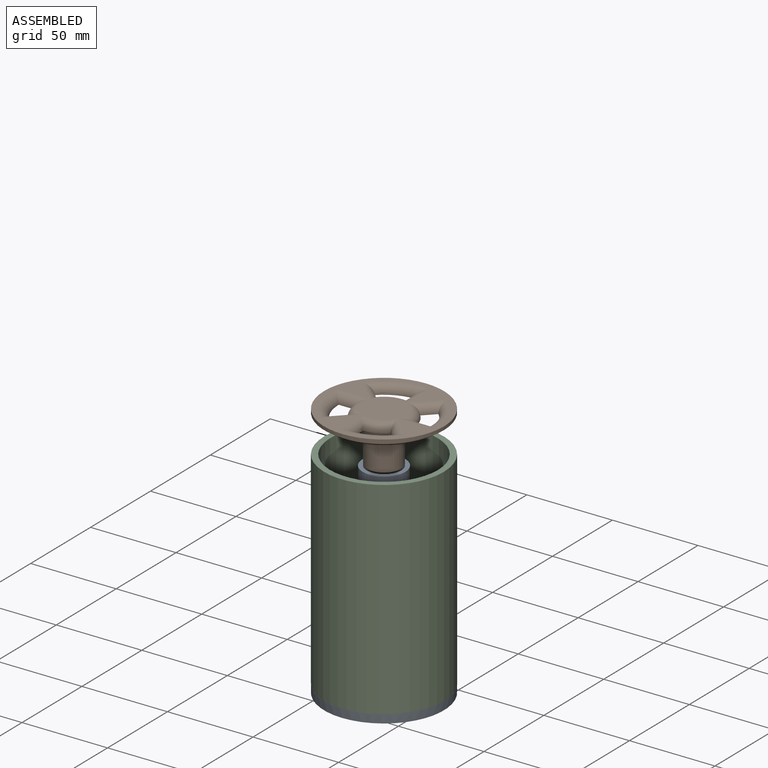
[diagram: assembled view]
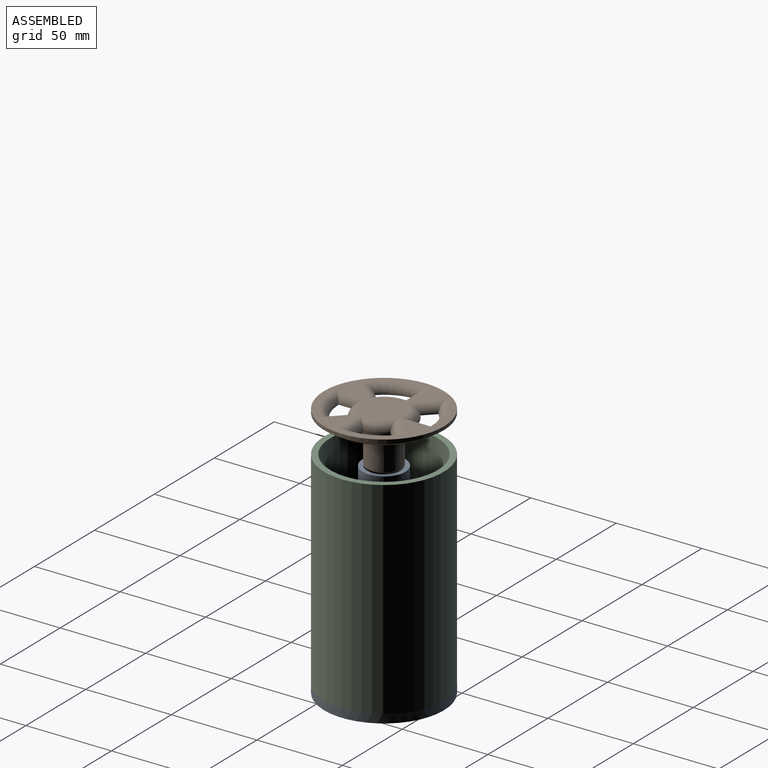
[diagram: assembled view, second angle]
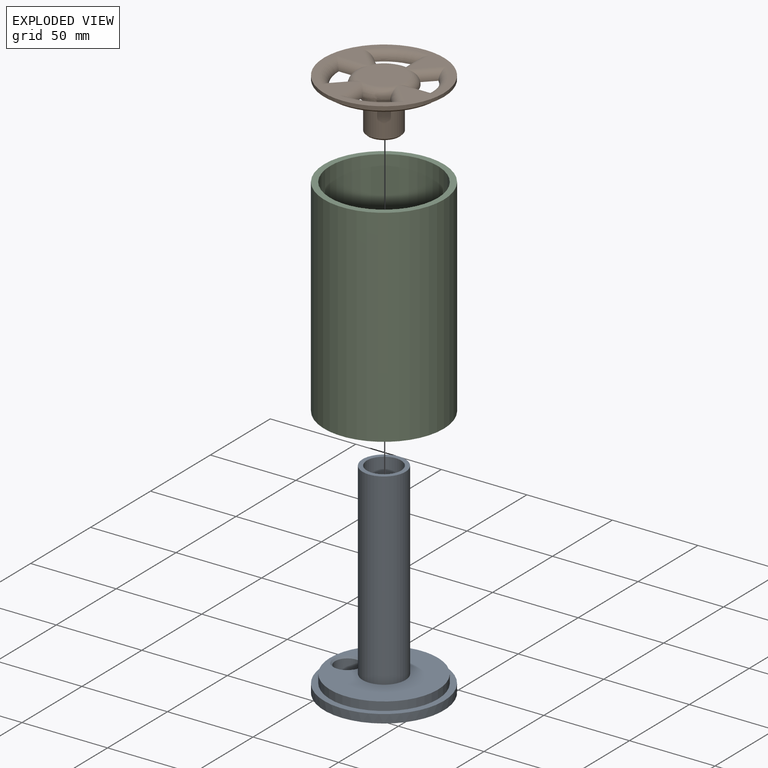
[diagram: exploded view]
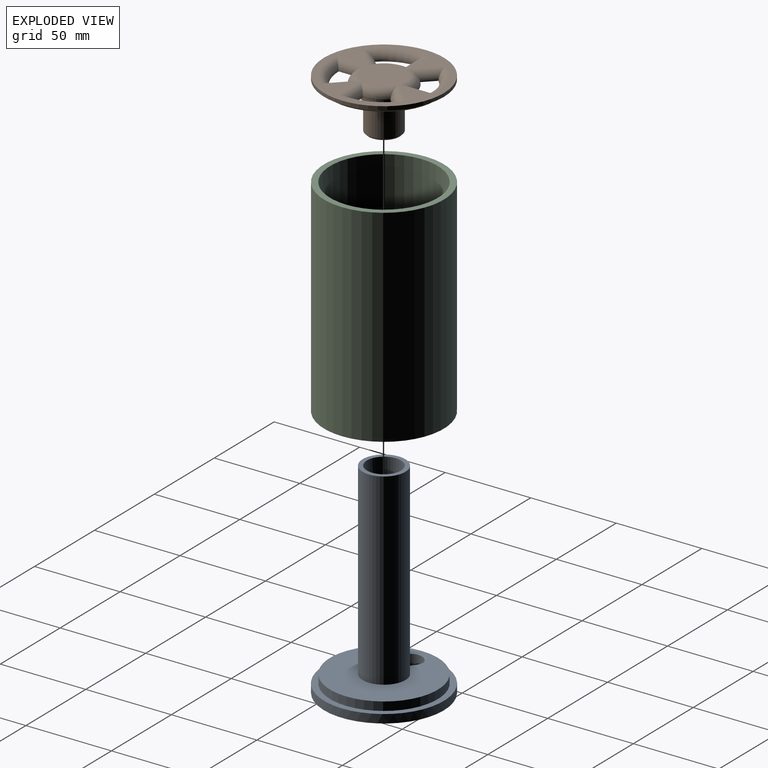
[diagram: exploded view, second angle]
ASSEMBLY  parts=3 mates=2
PART A: 13 faces, bbox 71.3x71.3x122.5 mm
  f0: cylinder r=35mm len=70mm, axis (0,0,-1), area 1066.7mm2, adj f1,f2,f10
  f1: plane 70x69.88mm, normal (0,0,-1), area 3663.4mm2, adj f0,f7,f8,f10
  f2: plane 71.28x71.23mm, normal (0,0,1), area 730.8mm2, adj f0,f3,f10
  f3: cylinder r=31.5mm len=63mm, axis (0,0,-1), area 989.6mm2, adj f2,f4
  f4: plane 63x63mm, normal (0,0,1), area 2412.7mm2, adj f3,f6,f9
  f5: plane 25x25mm, normal (0,0,1), area 176.7mm2, adj f6,f11
  f6: cylinder r=12.5mm len=110mm, axis (0,0,-1), area 8639.4mm2, adj f4,f5
  f7: cylinder r=2.55mm len=5.49mm, axis (-1,0,0), area 70.2mm2, adj f1,f8,f10
  f8: cylinder r=7.25mm len=14.49mm, axis (0,0,1), area 390.1mm2, adj f1,f7,f9
  f9: cone r=7.25mm half-angle=45deg, axis (0,0,1), area 68.8mm2, adj f4,f8
  f10: bspline ~7.32x6.81mm, area 22.6mm2, adj f0,f1,f2,f7
  f11: cylinder r=10mm len=30mm, axis (0,0,1), area 1885mm2, adj f5,f12
  f12: plane 20x20mm, normal (0,0,1), area 314.2mm2, adj f11
PART B: 32 faces, bbox 75.9x75.9x30 mm
  f0: plane 25x25mm, normal (0,0,-1), area 490.9mm2, adj f15,f16,f19,f20,f23,f24,f25,f28
  f1: cylinder r=35mm len=70mm, axis (0,0,-1), area 439.8mm2, adj f2,f3
  f2: plane 70x70mm, normal (0,0,1), area 731.2mm2, adj f1,f4
  f3: plane 70x70mm, normal (0,0,-1), area 1276.6mm2, adj f1,f12,f13,f14,f17,f18,f21,f22
  f4: cylinder r=31.5mm len=63mm, axis (0,0,-1), area 395.8mm2, adj f2,f11
  f5: plane 61x61mm, normal (0,0,1), area 1809.6mm2, adj f6,f11,f12,f13,f14,f15,f17,f18
  f6: cylinder r=12.5mm len=25mm, axis (0,0,-1), area 392.7mm2, adj f5,f7
  f7: plane 25x25mm, normal (0,0,1), area 176.7mm2, adj f6,f8
  f8: cylinder r=10mm len=20mm, axis (0,0,-1), area 1193.8mm2, adj f7,f10
  f9: plane 18x18mm, normal (0,0,1), area 254.5mm2, adj f10
  f10: cone r=9mm half-angle=45deg, axis (0,0,-1), area 84.4mm2, adj f8,f9
  f11: cone r=30.5mm half-angle=45deg, axis (0,0,-1), area 275.5mm2, adj f4,f5
  f12: torus R=31.5mm, axis (0,0,1), area 203.3mm2, adj f3,f5,f13,f14
  f13: cylinder r=5mm len=19.41mm, axis (0,1,0), area 100.1mm2, adj f3,f5,f12,f15,f17
  f14: cylinder r=5mm len=17.26mm, axis (-0.71,-0.71,0), area 100.1mm2, adj f3,f5,f12,f15,f18
  f15: torus R=12.5mm, axis (0,0,1), area 125.5mm2, adj f0,f5,f13,f14,f16,f19
  f16: torus R=12.5mm, axis (0,0,1), area 0mm2, adj f0,f15,f20
  f17: cylinder r=5mm len=17.26mm, axis (0.71,-0.71,0), area 100.1mm2, adj f3,f5,f13,f20,f21
  f18: cylinder r=5mm len=19.41mm, axis (1,0,0), area 100.1mm2, adj f3,f5,f14,f22,f23
  f19: torus R=12.5mm, axis (0,0,1), area 0mm2, adj f0,f15,f23
  f20: torus R=12.5mm, axis (0,0,1), area 125.5mm2, adj f0,f5,f16,f17,f25,f26
  f21: torus R=31.5mm, axis (0,0,1), area 203.3mm2, adj f3,f5,f17,f26
  f22: torus R=31.5mm, axis (0,0,1), area 203.3mm2, adj f3,f5,f18,f27
  f23: torus R=12.5mm, axis (0,0,1), area 125.5mm2, adj f0,f5,f18,f19,f24,f27
  f24: torus R=12.5mm, axis (0,0,1), area 0mm2, adj f0,f23,f28
  f25: torus R=12.5mm, axis (0,0,1), area 0mm2, adj f0,f20,f28
  f26: cylinder r=5mm len=19.41mm, axis (-1,0,0), area 100.1mm2, adj f3,f5,f20,f21,f29
  f27: cylinder r=5mm len=17.26mm, axis (-0.71,0.71,0), area 100.1mm2, adj f3,f5,f22,f23,f30
  f28: torus R=12.5mm, axis (0,0,1), area 125.5mm2, adj f0,f5,f24,f25,f29,f30
  f29: cylinder r=5mm len=17.26mm, axis (0.71,0.71,0), area 100.1mm2, adj f3,f5,f26,f28,f31
  f30: cylinder r=5mm len=19.41mm, axis (0,-1,0), area 100.1mm2, adj f3,f5,f27,f28,f31
  f31: torus R=31.5mm, axis (0,0,1), area 203.3mm2, adj f3,f5,f29,f30
PART C: 4 faces, bbox 70x70x121 mm
  f0: cylinder r=31.5mm len=121mm, axis (0,0,-1), area 23948.4mm2, adj f2,f3
  f1: cylinder r=35mm len=121mm, axis (0,0,-1), area 26609.3mm2, adj f2,f3
  f2: plane 70x70mm, normal (0,0,1), area 731.2mm2, adj f0,f1
  f3: plane 70x70mm, normal (0,0,-1), area 731.2mm2, adj f0,f1
PLACE A t=(-124.13,22.42,-32.93)mm
PLACE B rot(axis=(1,0,0),180deg) t=(-124.13,22.42,117.07)mm
PLACE C t=(-124.13,22.42,-27.93)mm
MATE fastened C.f1 <-> A.f0  axis (0,0,-1) through (-124.13,22.42,-27.93)mm
MATE slider B.f8 <-> A.f6  axis (0,0,-1) through (-124.13,22.42,87.07)mm
